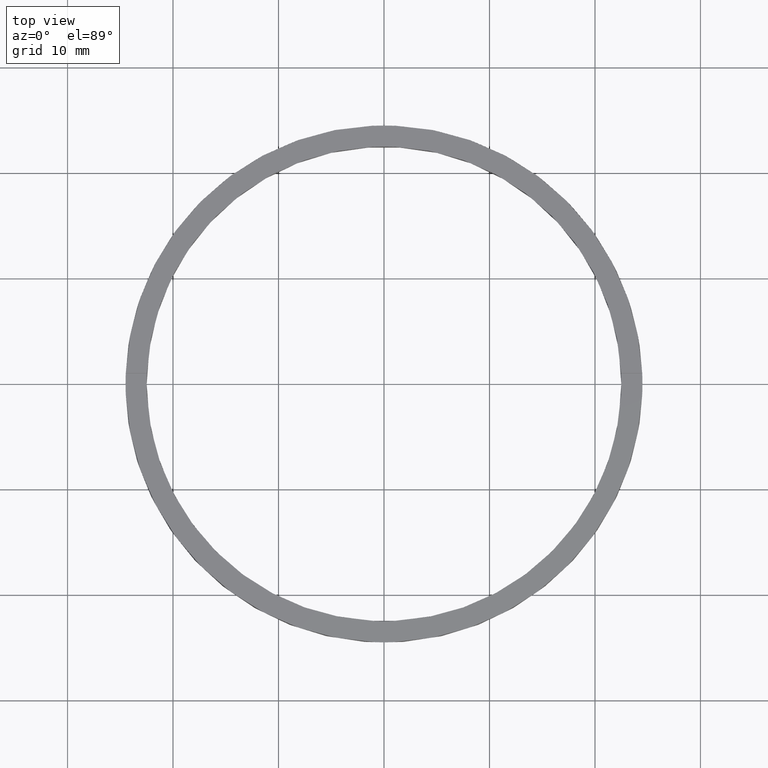
[diagram: clean part render]
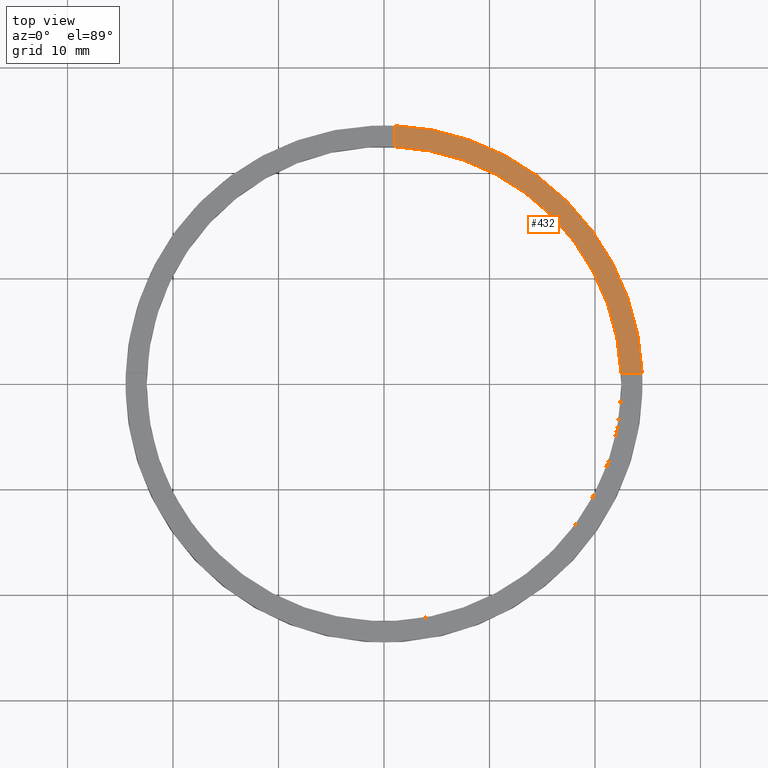
[diagram: same view with one face highlighted and labeled with its STEP entity id]
A machine part, top view. The second image highlights one B-rep face of the part: STEP entity #432.
In plain terms, the highlighted planar face has unit normal (0, 0, 1).
Its self-contained STEP definition (entity closure, byte-faithful):
#25 = VERTEX_POINT ( 'NONE', #407 ) ;
#26 = VERTEX_POINT ( 'NONE', #675 ) ;
#30 = ORIENTED_EDGE ( 'NONE', *, *, #414, .F. ) ;
#32 = LINE ( 'NONE', #184, #555 ) ;
#64 = CIRCLE ( 'NONE', #477, 24.50000000000000000 ) ;
#68 = CIRCLE ( 'NONE', #135, 22.50000000000000355 ) ;
#70 = CARTESIAN_POINT ( 'NONE',  ( 0.9999999999999740208, 22.47776679298902636, 2.500000000000000000 ) ) ;
#78 = VECTOR ( 'NONE', #665, 1000.000000000000000 ) ;
#135 = AXIS2_PLACEMENT_3D ( 'NONE', #593, #729, #237 ) ;
#140 = EDGE_CURVE ( 'NONE', #258, #528, #32, .T. ) ;
#153 = CARTESIAN_POINT ( 'NONE',  ( 0.000000000000000000, 0.000000000000000000, 2.500000000000000000 ) ) ;
#168 = ORIENTED_EDGE ( 'NONE', *, *, #610, .F. ) ;
#184 = CARTESIAN_POINT ( 'NONE',  ( 0.9999999999999740208, 14.50000000000000000, 2.500000000000000000 ) ) ;
#192 = CARTESIAN_POINT ( 'NONE',  ( 0.9999999999999740208, 24.47958332978729601, 2.500000000000000000 ) ) ;
#201 = CARTESIAN_POINT ( 'NONE',  ( 0.000000000000000000, 0.000000000000000000, 2.500000000000000000 ) ) ;
#237 = DIRECTION ( 'NONE',  ( 1.000000000000000000, 0.000000000000000000, 0.000000000000000000 ) ) ;
#258 = VERTEX_POINT ( 'NONE', #70 ) ;
#309 = ORIENTED_EDGE ( 'NONE', *, *, #140, .F. ) ;
#312 = DIRECTION ( 'NONE',  ( 0.000000000000000000, 1.000000000000000000, 0.000000000000000000 ) ) ;
#334 = PLANE ( 'NONE',  #360 ) ;
#345 = DIRECTION ( 'NONE',  ( 1.000000000000000000, 0.000000000000000000, -0.000000000000000000 ) ) ;
#360 = AXIS2_PLACEMENT_3D ( 'NONE', #153, #396, #345 ) ;
#370 = EDGE_LOOP ( 'NONE', ( #309, #168, #30, #582 ) ) ;
#378 = CARTESIAN_POINT ( 'NONE',  ( 14.49999999999999467, 0.9999999999998419042, 2.500000000000000000 ) ) ;
#396 = DIRECTION ( 'NONE',  ( 0.000000000000000000, 0.000000000000000000, 1.000000000000000000 ) ) ;
#407 = CARTESIAN_POINT ( 'NONE',  ( 24.47958332978729956, 0.9999999999998423483, 2.500000000000000000 ) ) ;
#414 = EDGE_CURVE ( 'NONE', #25, #26, #625, .T. ) ;
#432 = ADVANCED_FACE ( 'NONE', ( #607 ), #334, .T. ) ;
#468 = DIRECTION ( 'NONE',  ( 0.000000000000000000, 0.000000000000000000, 1.000000000000000000 ) ) ;
#477 = AXIS2_PLACEMENT_3D ( 'NONE', #201, #468, #516 ) ;
#516 = DIRECTION ( 'NONE',  ( 1.000000000000000000, 0.000000000000000000, 0.000000000000000000 ) ) ;
#528 = VERTEX_POINT ( 'NONE', #192 ) ;
#555 = VECTOR ( 'NONE', #312, 1000.000000000000000 ) ;
#582 = ORIENTED_EDGE ( 'NONE', *, *, #704, .T. ) ;
#593 = CARTESIAN_POINT ( 'NONE',  ( 0.000000000000000000, 0.000000000000000000, 2.500000000000000000 ) ) ;
#607 = FACE_OUTER_BOUND ( 'NONE', #370, .T. ) ;
#610 = EDGE_CURVE ( 'NONE', #26, #258, #68, .T. ) ;
#625 = LINE ( 'NONE', #378, #78 ) ;
#665 = DIRECTION ( 'NONE',  ( -1.000000000000000000, -4.336808689942018352E-17, -0.000000000000000000 ) ) ;
#675 = CARTESIAN_POINT ( 'NONE',  ( 22.47776679298903346, 0.9999999999998421263, 2.500000000000000000 ) ) ;
#704 = EDGE_CURVE ( 'NONE', #25, #528, #64, .T. ) ;
#729 = DIRECTION ( 'NONE',  ( 0.000000000000000000, 0.000000000000000000, 1.000000000000000000 ) ) ;